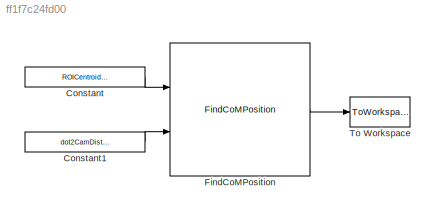
MODEL slx_ff1f7c24fd00
KIND model
CONFIG AbsTol = auto
CONFIG EnableMultiTasking = off
CONFIG FixedStep = auto
CONFIG MaxStep = auto
CONFIG MinStep = auto
CONFIG RelTol = 1e-3
CONFIG SampleTimeConstraint = Unconstrained
CONFIG Solver = FixedStepAuto
CONFIG SolverName = FixedStepAuto
CONFIG StartTime = 0.0
CONFIG StopTime = 0
BLOCK [Constant] Constant
  Value = ROICentroidVec_px
BLOCK [Constant] Constant1
  Value = dot2CamDist_cm
BLOCK [Reference] FindCoMPosition  REF=findDotCentroidPosition_ul/FindCoMPosition
  Ports = [2, 1]
  SourceBlock = findDotCentroidPosition_ul/FindCoMPosition
BLOCK [ToWorkspace] To Workspace
  FixptAsFi = on
  MaxDataPoints = inf
  Ports = [1]
  SampleTime = -1
  Save2DSignal = 3-D array (concatenate along third dimension)
  SaveFormat = Timeseries
  VariableName = simout
LINE Constant1:1 -> FindCoMPosition:2
LINE Constant:1 -> FindCoMPosition:1
LINE FindCoMPosition:1 -> To Workspace:1
